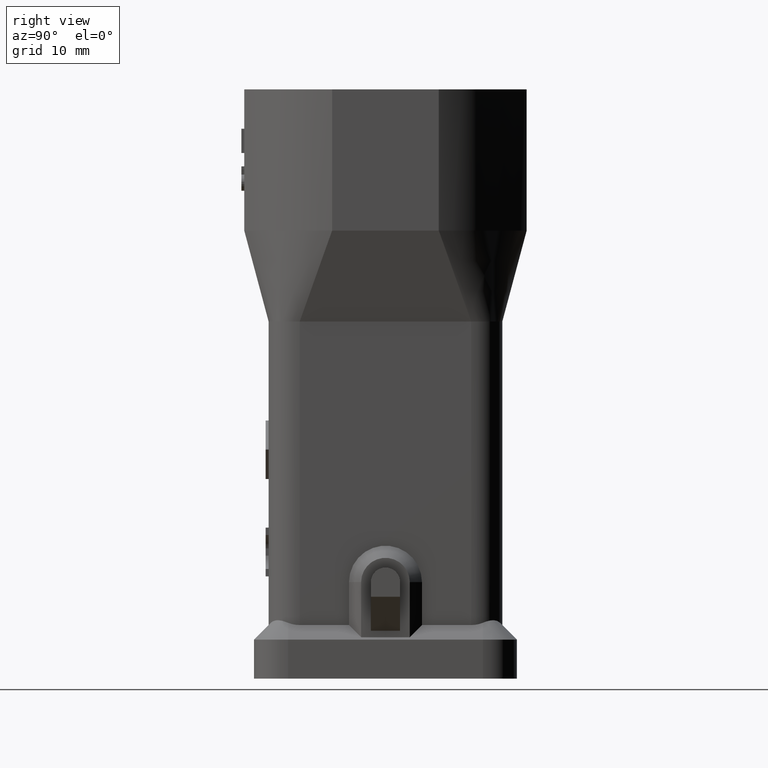
[diagram: clean part render]
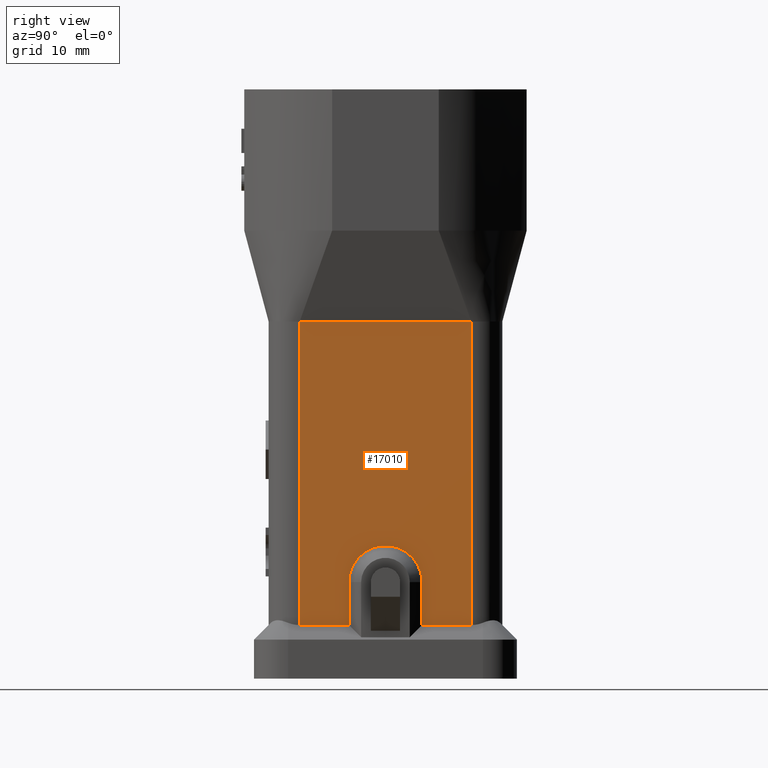
[diagram: same view with one face highlighted and labeled with its STEP entity id]
A machine part, right view. The second image highlights one B-rep face of the part: STEP entity #17010.
In plain terms, the highlighted planar face has unit normal (1, 0, 0).
Its self-contained STEP definition (entity closure, byte-faithful):
#15170=CARTESIAN_POINT('',(54.465603,31.559071,33.1698729810778));
#15180=VERTEX_POINT('',#15170);
#15210=CARTESIAN_POINT('',(54.465603,31.559071,14.));
#15220=DIRECTION('',(0.,0.,1.));
#15230=VECTOR('',#15220,1.);
#15240=LINE('',#15210,#15230);
#15250=CARTESIAN_POINT('',(54.465603,31.559071,1.99999999912267));
#15260=VERTEX_POINT('',#15250);
#15270=EDGE_CURVE('',#15260,#15180,#15240,.T.);
#16380=CARTESIAN_POINT('',(54.465603,49.159071,0.));
#16390=DIRECTION('',(1.,0.,0.));
#16400=DIRECTION('',(0.,-1.,0.));
#16410=AXIS2_PLACEMENT_3D('',#16380,#16390,#16400);
#16420=PLANE('',#16410);
#16430=CARTESIAN_POINT('',(54.465603,5.969071,33.1698729810778));
#16440=DIRECTION('',(0.,1.,0.));
#16450=VECTOR('',#16440,1.);
#16460=LINE('',#16430,#16450);
#16470=CARTESIAN_POINT('',(54.465603,49.159071,33.1698729810778));
#16480=VERTEX_POINT('',#16470);
#16490=EDGE_CURVE('',#15180,#16480,#16460,.T.);
#16500=ORIENTED_EDGE('',*,*,#16490,.F.);
#16510=CARTESIAN_POINT('',(54.465603,49.159071,0.));
#16520=DIRECTION('',(0.,0.,1.));
#16530=VECTOR('',#16520,1.);
#16540=LINE('',#16510,#16530);
#16550=CARTESIAN_POINT('',(54.465603,49.159071,1.99999999912267));
#16560=VERTEX_POINT('',#16550);
#16570=EDGE_CURVE('',#16560,#16480,#16540,.T.);
#16580=ORIENTED_EDGE('',*,*,#16570,.T.);
#16590=CARTESIAN_POINT('',(54.465603,0.,1.99999999912267));
#16600=DIRECTION('',(0.,-1.,0.));
#16610=VECTOR('',#16600,1.);
#16620=LINE('',#16590,#16610);
#16630=CARTESIAN_POINT('',(54.465603,44.109071,1.99999999912267));
#16640=VERTEX_POINT('',#16630);
#16650=EDGE_CURVE('',#16560,#16640,#16620,.T.);
#16660=ORIENTED_EDGE('',*,*,#16650,.F.);
#16670=CARTESIAN_POINT('',(54.465603,44.109071,0.));
#16680=DIRECTION('',(0.,6.12323399573677E-17,-1.));
#16690=VECTOR('',#16680,1.);
#16700=LINE('',#16670,#16690);
#16710=CARTESIAN_POINT('',(54.465603,44.109071,6.4));
#16720=VERTEX_POINT('',#16710);
#16730=EDGE_CURVE('',#16720,#16640,#16700,.T.);
#16740=ORIENTED_EDGE('',*,*,#16730,.T.);
#16750=CARTESIAN_POINT('',(54.465603,40.359071,6.4));
#16760=DIRECTION('',(1.,0.,0.));
#16770=DIRECTION('',(0.,1.,0.));
#16780=AXIS2_PLACEMENT_3D('',#16750,#16760,#16770);
#16790=CIRCLE('',#16780,3.74999999999999);
#16800=CARTESIAN_POINT('',(54.465603,36.609071,6.4));
#16810=VERTEX_POINT('',#16800);
#16820=EDGE_CURVE('',#16720,#16810,#16790,.T.);
#16830=ORIENTED_EDGE('',*,*,#16820,.F.);
#16840=CARTESIAN_POINT('',(54.465603,36.609071,0.));
#16850=DIRECTION('',(0.,-6.12323399573677E-17,1.));
#16860=VECTOR('',#16850,1.);
#16870=LINE('',#16840,#16860);
#16880=CARTESIAN_POINT('',(54.465603,36.609071,1.99999999912267));
#16890=VERTEX_POINT('',#16880);
#16900=EDGE_CURVE('',#16890,#16810,#16870,.T.);
#16910=ORIENTED_EDGE('',*,*,#16900,.T.);
#16920=CARTESIAN_POINT('',(54.465603,0.,1.99999999912267));
#16930=DIRECTION('',(0.,-1.,0.));
#16940=VECTOR('',#16930,1.);
#16950=LINE('',#16920,#16940);
#16960=EDGE_CURVE('',#16890,#15260,#16950,.T.);
#16970=ORIENTED_EDGE('',*,*,#16960,.F.);
#16980=ORIENTED_EDGE('',*,*,#15270,.F.);
#16990=EDGE_LOOP('',(#16980,#16970,#16910,#16830,#16740,#16660,#16580,
#16500));
#17000=FACE_OUTER_BOUND('',#16990,.T.);
#17010=ADVANCED_FACE('',(#17000),#16420,.T.);